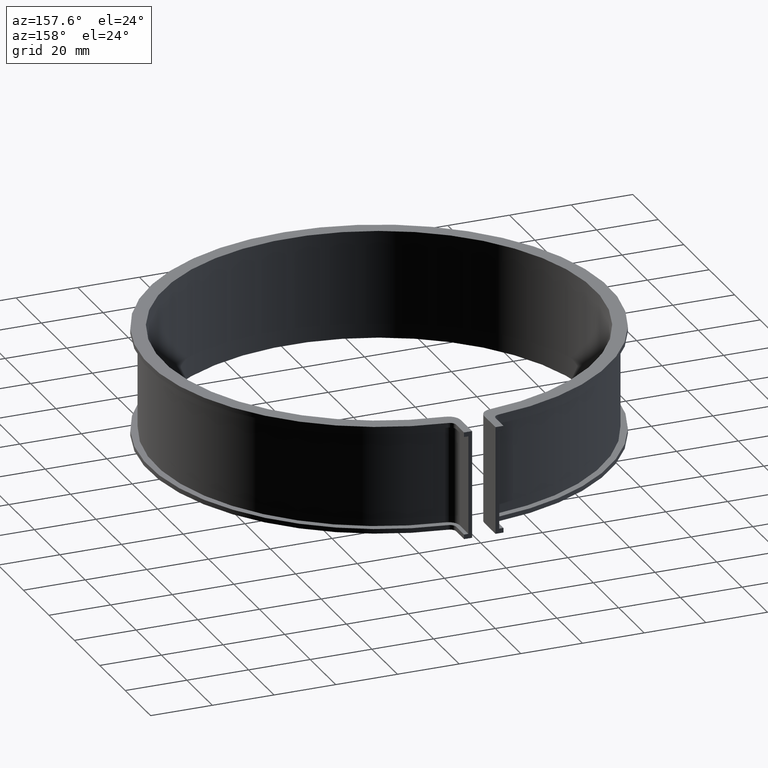
[diagram: clean part render]
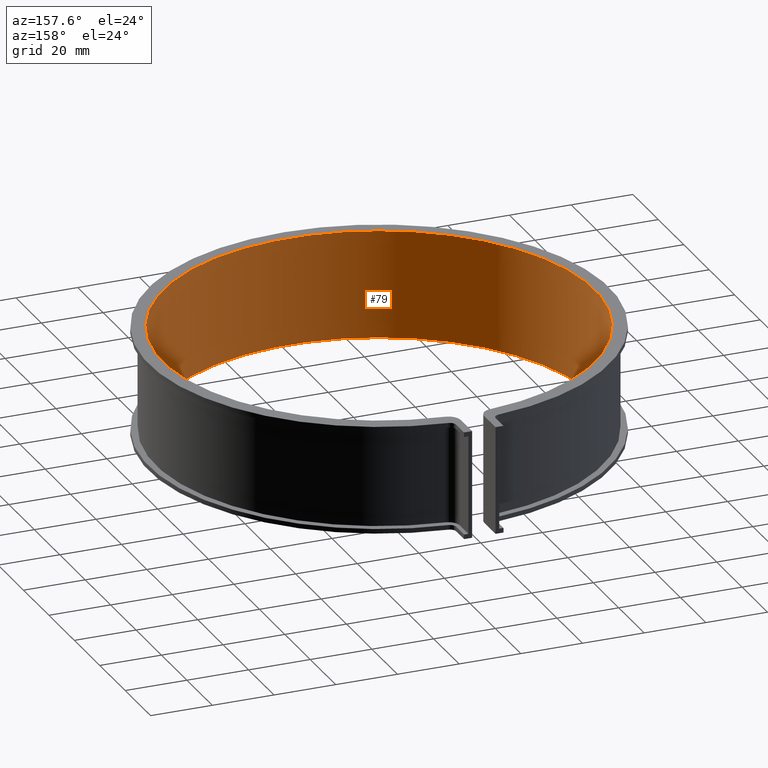
[diagram: same view with one face highlighted and labeled with its STEP entity id]
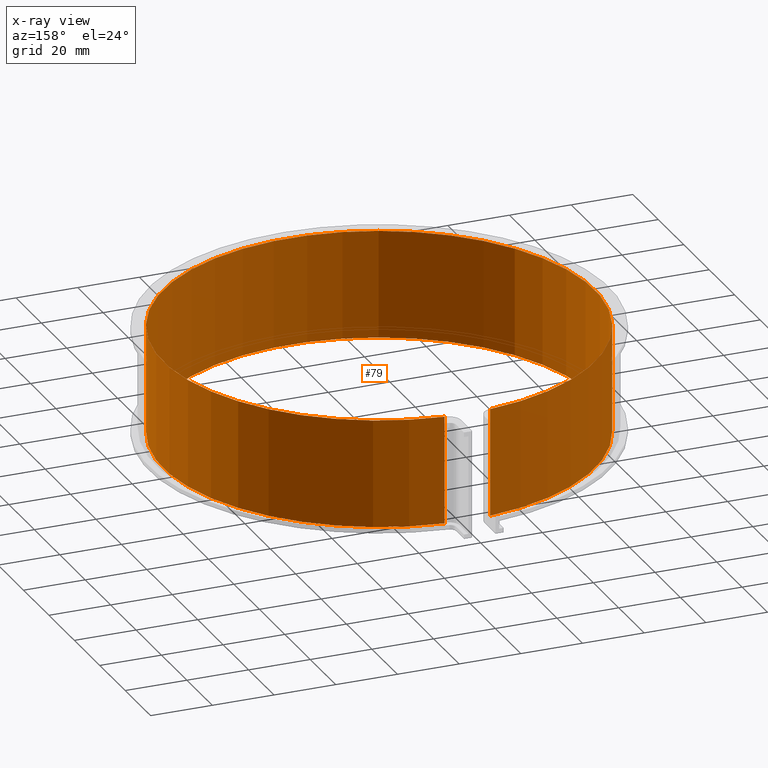
[diagram: x-ray of the same camera — body ghosted, the highlighted face saturated]
A machine part, auxiliary view. The second image highlights one B-rep face of the part: STEP entity #79.
The next image is the same camera in x-ray: the body ghosted, the highlighted face saturated — about 0% of this face is hidden behind the body in this view.
In plain terms, the highlighted cylindrical surface (partial cylindrical patch) has radius 69.9 mm, axis along (0, 0, -1).
Its self-contained STEP definition (entity closure, byte-faithful):
#79 = ADVANCED_FACE( '', ( #110 ), #111, .F. );
#110 = FACE_OUTER_BOUND( '', #162, .T. );
#111 = CYLINDRICAL_SURFACE( '', #163, 69.9000000000000 );
#162 = EDGE_LOOP( '', ( #246, #247, #248, #249 ) );
#163 = AXIS2_PLACEMENT_3D( '', #250, #251, #252 );
#246 = ORIENTED_EDGE( '', *, *, #453, .T. );
#247 = ORIENTED_EDGE( '', *, *, #454, .F. );
#248 = ORIENTED_EDGE( '', *, *, #428, .F. );
#249 = ORIENTED_EDGE( '', *, *, #455, .T. );
#250 = CARTESIAN_POINT( '', ( 1.73472347597681E-015, 2.77555756156289E-014, -32.0000000000000 ) );
#251 = DIRECTION( '', ( 0.000000000000000, 0.000000000000000, -1.00000000000000 ) );
#252 = DIRECTION( '', ( -0.105548037889040, -0.994414205297659, 0.000000000000000 ) );
#428 = EDGE_CURVE( '', #500, #501, #502, .T. );
#453 = EDGE_CURVE( '', #548, #549, #550, .T. );
#454 = EDGE_CURVE( '', #501, #549, #551, .T. );
#455 = EDGE_CURVE( '', #500, #548, #552, .T. );
#500 = VERTEX_POINT( '', #620 );
#501 = VERTEX_POINT( '', #621 );
#502 = LINE( '', #622, #623 );
#548 = VERTEX_POINT( '', #685 );
#549 = VERTEX_POINT( '', #686 );
#550 = LINE( '', #687, #688 );
#551 = CIRCLE( '', #689, 69.9000000000000 );
#552 = CIRCLE( '', #690, 69.9000000000000 );
#620 = CARTESIAN_POINT( '', ( 7.37780784844383, 69.5095529503064, -33.5000000000000 ) );
#621 = CARTESIAN_POINT( '', ( 7.37780784844383, 69.5095529503064, 1.50000000000000 ) );
#622 = CARTESIAN_POINT( '', ( 7.37780784844383, 69.5095529503063, -32.0000000000000 ) );
#623 = VECTOR( '', #788, 1000.00000000000 );
#685 = CARTESIAN_POINT( '', ( -7.37780784844385, 69.5095529503063, -33.5000000000000 ) );
#686 = CARTESIAN_POINT( '', ( -7.37780784844385, 69.5095529503063, 1.50000000000000 ) );
#687 = CARTESIAN_POINT( '', ( -7.37780784844384, 69.5095529503063, -32.0000000000000 ) );
#688 = VECTOR( '', #829, 1000.00000000000 );
#689 = AXIS2_PLACEMENT_3D( '', #830, #831, #832 );
#690 = AXIS2_PLACEMENT_3D( '', #833, #834, #835 );
#788 = DIRECTION( '', ( 0.000000000000000, 0.000000000000000, 1.00000000000000 ) );
#829 = DIRECTION( '', ( 0.000000000000000, 0.000000000000000, 1.00000000000000 ) );
#830 = CARTESIAN_POINT( '', ( 0.000000000000000, 0.000000000000000, 1.50000000000000 ) );
#831 = DIRECTION( '', ( 0.000000000000000, 0.000000000000000, -1.00000000000000 ) );
#832 = DIRECTION( '', ( 1.00000000000000, 0.000000000000000, 0.000000000000000 ) );
#833 = CARTESIAN_POINT( '', ( 0.000000000000000, 0.000000000000000, -33.5000000000000 ) );
#834 = DIRECTION( '', ( 0.000000000000000, 0.000000000000000, -1.00000000000000 ) );
#835 = DIRECTION( '', ( 1.00000000000000, 0.000000000000000, 0.000000000000000 ) );